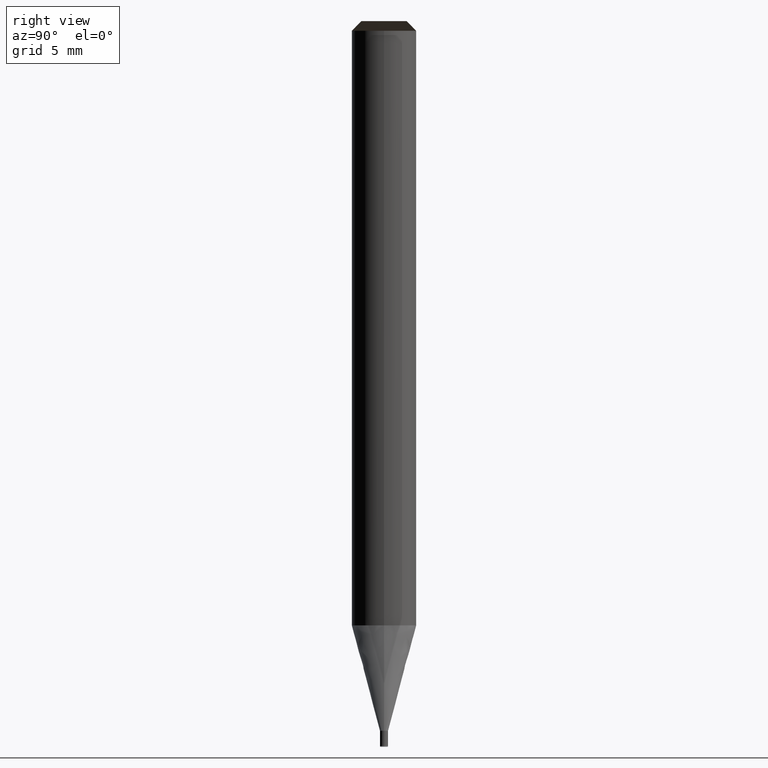
[diagram: clean part render]
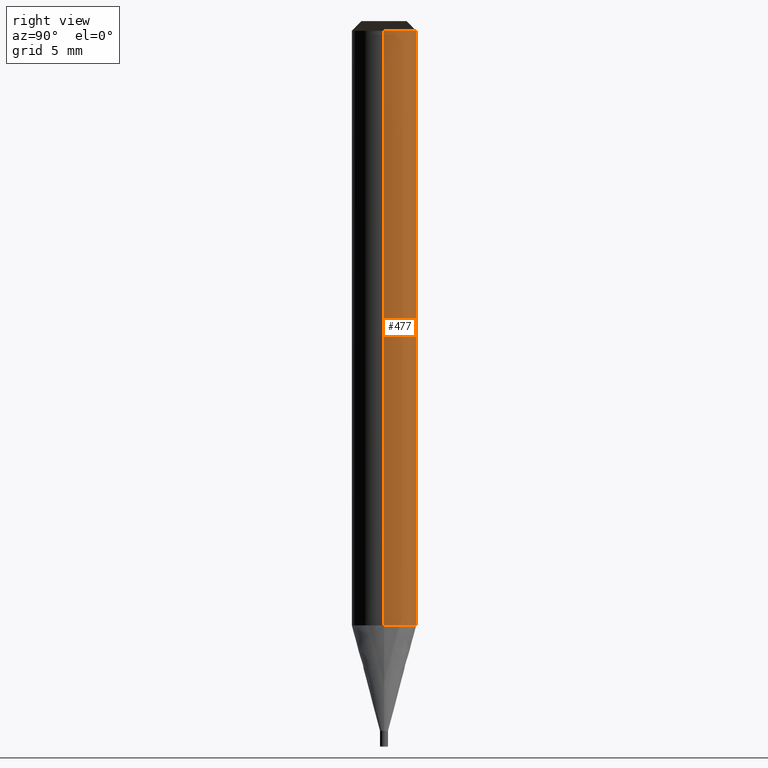
[diagram: same view with one face highlighted and labeled with its STEP entity id]
A machine part, right view. The second image highlights one B-rep face of the part: STEP entity #477.
In plain terms, the highlighted face is a freeform B-spline surface patch.
Its self-contained STEP definition (entity closure, byte-faithful):
#221=CARTESIAN_POINT('',(2.0,0.0,0.0));
#222=CARTESIAN_POINT('',(2.0,2.0,0.0));
#223=CARTESIAN_POINT('',(0.0,2.0,0.0));
#224=CARTESIAN_POINT('',(-2.0,2.0,0.0));
#225=CARTESIAN_POINT('',(-2.0,0.0,0.0));
#226=CARTESIAN_POINT('',(2.0,0.0,36.869));
#227=CARTESIAN_POINT('',(2.0,2.0,36.869));
#228=CARTESIAN_POINT('',(0.0,2.0,36.869));
#229=CARTESIAN_POINT('',(-2.0,2.0,36.869));
#230=CARTESIAN_POINT('',(-2.0,0.0,36.869));
#458=(
BOUNDED_SURFACE()
B_SPLINE_SURFACE(1,2,(
(#221,#222,#223,#224,#225),
(#226,#227,#228,#229,#230)
), .UNSPECIFIED.,.F.,.F.,.F.)
B_SPLINE_SURFACE_WITH_KNOTS((2,2),(3,2,3),(
0.0,1.0),(
0.0,0.5,1.0), .UNSPECIFIED.)
GEOMETRIC_REPRESENTATION_ITEM()
RATIONAL_B_SPLINE_SURFACE(((1.0,0.707106781187,1.0,0.707106781187,1.0),
(1.0,0.707106781187,1.0,0.707106781187,1.0)
))
REPRESENTATION_ITEM('')
SURFACE()
);
#459=(
BOUNDED_CURVE()
B_SPLINE_CURVE(2,(#226,#227,#228,#229,#230),.UNSPECIFIED.,.F.,.F.)
B_SPLINE_CURVE_WITH_KNOTS((3,2,3),
(0.0,0.5,1.0),.UNSPECIFIED.)
CURVE()
GEOMETRIC_REPRESENTATION_ITEM()
RATIONAL_B_SPLINE_CURVE((1.0,0.707106781187,1.0,0.707106781187,1.0))
REPRESENTATION_ITEM('')
);
#460=(
BOUNDED_CURVE()
B_SPLINE_CURVE(1,(#230,#225),.UNSPECIFIED.,.F.,.F.)
B_SPLINE_CURVE_WITH_KNOTS((2,2),
(0.0,1.0),.UNSPECIFIED.)
CURVE()
GEOMETRIC_REPRESENTATION_ITEM()
RATIONAL_B_SPLINE_CURVE((1.0,1.0))
REPRESENTATION_ITEM('')
);
#461=(
BOUNDED_CURVE()
B_SPLINE_CURVE(2,(#225,#224,#223,#222,#221),.UNSPECIFIED.,.F.,.F.)
B_SPLINE_CURVE_WITH_KNOTS((3,2,3),
(0.0,0.5,1.0),.UNSPECIFIED.)
CURVE()
GEOMETRIC_REPRESENTATION_ITEM()
RATIONAL_B_SPLINE_CURVE((1.0,0.707106781187,1.0,0.707106781187,1.0))
REPRESENTATION_ITEM('')
);
#462=(
BOUNDED_CURVE()
B_SPLINE_CURVE(1,(#221,#226),.UNSPECIFIED.,.F.,.F.)
B_SPLINE_CURVE_WITH_KNOTS((2,2),
(0.0,1.0),.UNSPECIFIED.)
CURVE()
GEOMETRIC_REPRESENTATION_ITEM()
RATIONAL_B_SPLINE_CURVE((1.0,1.0))
REPRESENTATION_ITEM('')
);
#463=VERTEX_POINT('',#221);
#464=VERTEX_POINT('',#225);
#465=VERTEX_POINT('',#226);
#466=VERTEX_POINT('',#230);
#467=EDGE_CURVE('',#465,#466,#459,.T.);
#468=EDGE_CURVE('',#466,#464,#460,.T.);
#469=EDGE_CURVE('',#464,#463,#461,.T.);
#470=EDGE_CURVE('',#463,#465,#462,.T.);
#471=ORIENTED_EDGE('',*,*,#467,.T.);
#472=ORIENTED_EDGE('',*,*,#468,.T.);
#473=ORIENTED_EDGE('',*,*,#469,.T.);
#474=ORIENTED_EDGE('',*,*,#470,.T.);
#475=EDGE_LOOP('',(#471,#472,#473,#474));
#476=FACE_OUTER_BOUND('',#475,.T.);
#477=ADVANCED_FACE('',(#476),#458,.T.);